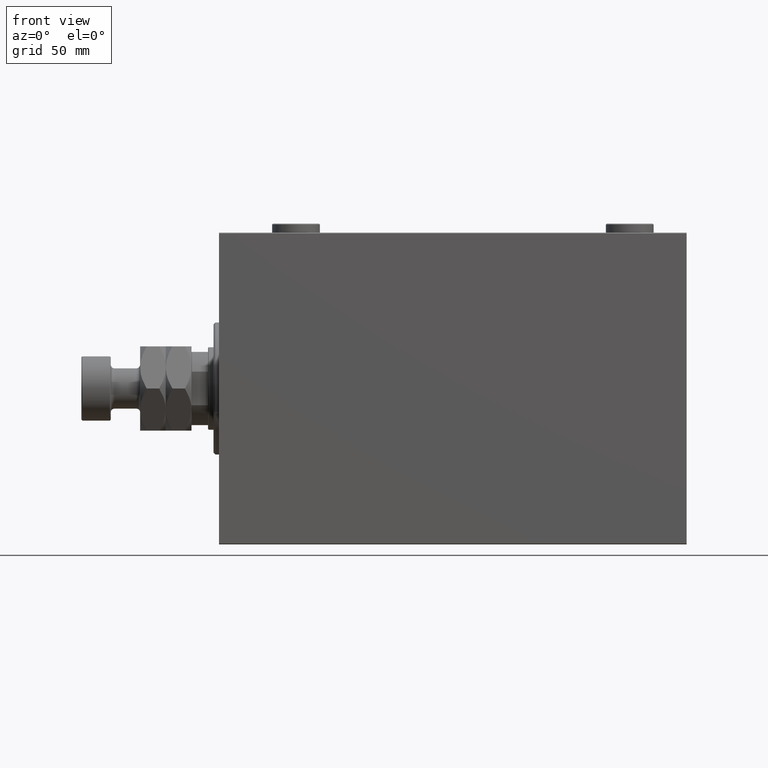
[diagram: clean part render]
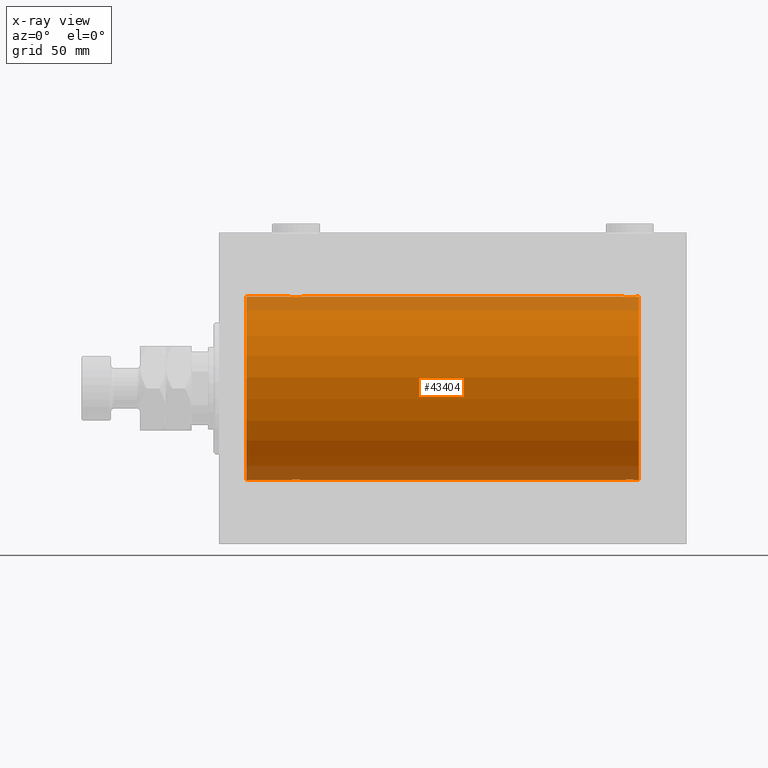
[diagram: x-ray — body ghosted, one internal face saturated and labeled with its STEP entity id]
A machine part, front view, then the same camera in x-ray: the body is ghosted and one INTERNAL B-rep face — a face not visible from any outside direction — is saturated and labeled: STEP entity #43404.
In plain terms, the highlighted cylindrical surface (partial cylindrical patch) has radius 50 mm, axis along (-1, -0, -0).
Its self-contained STEP definition (entity closure, byte-faithful):
#37 = DIRECTION ( 'NONE',  ( -1.000000000000000000, -0.000000000000000000, -0.000000000000000000 ) ) ;
#136 = CIRCLE ( 'NONE', #33577, 50.00000000000000000 ) ;
#207 = CARTESIAN_POINT ( 'NONE',  ( 45.81839248987871827, -1.886522330773408029, 49.96505190380065642 ) ) ;
#288 = CARTESIAN_POINT ( 'NONE',  ( 46.25000000000000000, 6.123233970928975205E-15, -50.00000000000000000 ) ) ;
#728 = CARTESIAN_POINT ( 'NONE',  ( 228.2224263552078014, -0.5587117664567154973, 49.99763378604802000 ) ) ;
#965 = CARTESIAN_POINT ( 'NONE',  ( 228.2500000000000568, -0.2808785465865648034, 50.00000000000001421 ) ) ;
#1129 = VERTEX_POINT ( 'NONE', #44619 ) ;
#1134 = ORIENTED_EDGE ( 'NONE', *, *, #41223, .T. ) ;
#1187 = CARTESIAN_POINT ( 'NONE',  ( 228.2500000000000284, 3.264240518254796977E-15, 50.00000000000000000 ) ) ;
#1582 = ORIENTED_EDGE ( 'NONE', *, *, #31809, .F. ) ;
#1721 = FACE_OUTER_BOUND ( 'NONE', #31371, .T. ) ;
#1850 = CARTESIAN_POINT ( 'NONE',  ( 43.88744739392799232, -3.818052230167705119, -49.85412671291930309 ) ) ;
#2080 = DIRECTION ( 'NONE',  ( -1.000000000000000000, -0.000000000000000000, -0.000000000000000000 ) ) ;
#2084 = CARTESIAN_POINT ( 'NONE',  ( 46.03272642097311973, -1.369753890039645539, -49.98188917176553048 ) ) ;
#2270 = CARTESIAN_POINT ( 'NONE',  ( 228.2231075279900381, -0.5531336717329015107, -49.99769193709643389 ) ) ;
#2323 = CARTESIAN_POINT ( 'NONE',  ( 42.55997867695646875, -4.222042462213109637, -49.82145436824654183 ) ) ;
#2507 = CARTESIAN_POINT ( 'NONE',  ( 219.8875029891967188, -1.108337267831510209, -49.98846998601261760 ) ) ;
#2745 = CARTESIAN_POINT ( 'NONE',  ( 223.4459143511985246, -4.222816005855223764, -49.82138837911247009 ) ) ;
#3031 = CARTESIAN_POINT ( 'NONE',  ( 42.28395287026697957, -4.249777379711388470, -49.81906655360197789 ) ) ;
#3273 = CARTESIAN_POINT ( 'NONE',  ( 37.77757364479219149, -0.5587117664567089470, -49.99763378604803421 ) ) ;
#3417 = CARTESIAN_POINT ( 'NONE',  ( 220.3106284432061841, -2.128188802142376268, 49.95522967821975158 ) ) ;
#3532 = CARTESIAN_POINT ( 'NONE',  ( 38.17899418014773261, -1.881229021238125521, 49.96525240872481533 ) ) ;
#4171 = DIRECTION ( 'NONE',  ( -1.000000000000000000, 0.000000000000000000, 0.000000000000000000 ) ) ;
#4184 = ORIENTED_EDGE ( 'NONE', *, *, #39753, .T. ) ;
#4294 = CARTESIAN_POINT ( 'NONE',  ( 228.0307979615534748, -1.375411031076039237, 49.98173289062309976 ) ) ;
#4523 = CARTESIAN_POINT ( 'NONE',  ( 225.0973761787904550, -4.115209769591112732, 49.83039196709102470 ) ) ;
#4755 = CARTESIAN_POINT ( 'NONE',  ( 226.8069783183931349, -3.203153387937324403, 49.89767833571684008 ) ) ;
#4779 = DIRECTION ( 'NONE',  ( 0.000000000000000000, 0.000000000000000000, 1.000000000000000000 ) ) ;
#4906 = VERTEX_POINT ( 'NONE', #37969 ) ;
#5084 = VERTEX_POINT ( 'NONE', #20350 ) ;
#5523 = CYLINDRICAL_SURFACE ( 'NONE', #9236, 50.00000000000000000 ) ;
#5894 = CARTESIAN_POINT ( 'NONE',  ( 38.80078072038718062, -2.811461347331096317, -49.92127983148851911 ) ) ;
#6081 = CARTESIAN_POINT ( 'NONE',  ( 222.9026238212096587, -4.115209769591121614, -49.83039196709102470 ) ) ;
#6132 = CARTESIAN_POINT ( 'NONE',  ( 37.75000000000002132, -0.2808785465865586417, -50.00000000000002842 ) ) ;
#6369 = CARTESIAN_POINT ( 'NONE',  ( 38.18160751012128173, -1.886522330773408251, -49.96505190380065642 ) ) ;
#6550 = CARTESIAN_POINT ( 'NONE',  ( 219.9692020384465820, -1.375411031076054336, -49.98173289062309976 ) ) ;
#6875 = CARTESIAN_POINT ( 'NONE',  ( 44.80697831839309941, -3.203153387937316854, 49.89767833571684719 ) ) ;
#6897 = VECTOR ( 'NONE', #39647, 1000.000000000000000 ) ;
#7059 = B_SPLINE_CURVE_WITH_KNOTS ( 'NONE', 3,
 ( #16145, #30654, #34695, #45188, #2084, #19262, #12574, #41621, #12804, #38039, #19953, #34463, #1850, #27310, #9954, #2323, #3031, #31835, #34934, #20887, #38739, #27783, #16849, #42321, #46606, #5894, #35651, #31599, #6369, #24216, #31365, #3273, #6132, #35414 ),
 .UNSPECIFIED., .F., .F.,
 ( 4, 2, 2, 2, 2, 2, 2, 2, 2, 2, 2, 2, 2, 2, 2, 2, 4 ),
 ( 0.01329343152928757175, 0.01412407817529635380, 0.01495472482130513585, 0.01578537146731391616, 0.01661601811332270168, 0.01744666475933148372, 0.01827731140534026577, 0.01910795805134904782, 0.01993860469735782986, 0.02076925134336661191, 0.02159989798937539396, 0.02243054463538417601, 0.02326119128139295805, 0.02409183792740174010, 0.02492248457341052215, 0.02575313121941930072, 0.02658377786542808624 ),
 .UNSPECIFIED. ) ;
#7111 = CARTESIAN_POINT ( 'NONE',  ( 37.88568086693991432, -1.101350136471744623, 49.98862054280447609 ) ) ;
#7346 = CARTESIAN_POINT ( 'NONE',  ( 37.75000000000000711, -2.480809774739037926E-23, 50.00000000000000000 ) ) ;
#7449 = CARTESIAN_POINT ( 'NONE',  ( 229.0000000000000000, 6.123233995736764507E-15, -50.00000000000000000 ) ) ;
#7521 = CARTESIAN_POINT ( 'NONE',  ( 229.0000000000000000, 0.000000000000000000, 0.000000000000000000 ) ) ;
#7751 = EDGE_CURVE ( 'NONE', #17693, #5084, #13279, .T. ) ;
#8235 = ORIENTED_EDGE ( 'NONE', *, *, #8852, .T. ) ;
#8346 = CARTESIAN_POINT ( 'NONE',  ( 221.8686360055384910, -3.687400765141532144, 49.86408552998298660 ) ) ;
#8420 = DIRECTION ( 'NONE',  ( -1.000000000000000000, -0.000000000000000000, -0.000000000000000000 ) ) ;
#8852 = EDGE_CURVE ( 'NONE', #15569, #45345, #23226, .T. ) ;
#9236 = AXIS2_PLACEMENT_3D ( 'NONE', #34101, #8420, #45289 ) ;
#9430 = CARTESIAN_POINT ( 'NONE',  ( 224.2839528702670293, -4.249777379711420444, -49.81906655360197789 ) ) ;
#9663 = CARTESIAN_POINT ( 'NONE',  ( 226.1313639944616227, -3.687400765141540582, -49.86408552998298660 ) ) ;
#9954 = CARTESIAN_POINT ( 'NONE',  ( 43.10323296034216156, -4.113647494206467137, -49.83052139214892406 ) ) ;
#10383 = CARTESIAN_POINT ( 'NONE',  ( 225.1032329603422397, -4.113647494206493782, -49.83052139214891696 ) ) ;
#10462 = CARTESIAN_POINT ( 'NONE',  ( 43.36710647554576070, -4.033756670430846292, 49.83713703490974467 ) ) ;
#10813 = CARTESIAN_POINT ( 'NONE',  ( 226.5882021467620291, -3.382416624899780899, 49.88570010427955737 ) ) ;
#11383 = EDGE_CURVE ( 'NONE', #43523, #21063, #7059, .T. ) ;
#12574 = CARTESIAN_POINT ( 'NONE',  ( 45.68937155679385853, -2.128188802142360281, -49.95522967821975868 ) ) ;
#12769 = ORIENTED_EDGE ( 'NONE', *, *, #25586, .F. ) ;
#12804 = CARTESIAN_POINT ( 'NONE',  ( 45.20303561951989479, -2.807099414226267076, -49.92152599098507437 ) ) ;
#13279 = LINE ( 'NONE', #28012, #40329 ) ;
#13395 = CIRCLE ( 'NONE', #14930, 50.00000000000000000 ) ;
#13468 = CARTESIAN_POINT ( 'NONE',  ( 228.0327264209731766, -1.369753890039647093, -49.98188917176553048 ) ) ;
#13708 = CARTESIAN_POINT ( 'NONE',  ( 225.8874473939280279, -3.818052230167738870, -49.85412671291929598 ) ) ;
#13787 = CARTESIAN_POINT ( 'NONE',  ( 46.03079796155342507, -1.375411031076031687, 49.98173289062309976 ) ) ;
#14022 = CARTESIAN_POINT ( 'NONE',  ( 39.86863600553846254, -3.687400765141531700, 49.86408552998297949 ) ) ;
#14254 = CARTESIAN_POINT ( 'NONE',  ( 38.62118282736263097, -2.593114840406128163, 49.93325460257639747 ) ) ;
#14346 = VERTEX_POINT ( 'NONE', #39781 ) ;
#14367 = CARTESIAN_POINT ( 'NONE',  ( 221.4068727911404721, -3.378657745070624774, 49.88595615988430154 ) ) ;
#14494 = CARTESIAN_POINT ( 'NONE',  ( 46.25000000000004263, -0.2808785465865667463, 50.00000000000001421 ) ) ;
#14606 = VERTEX_POINT ( 'NONE', #20684 ) ;
#14930 = AXIS2_PLACEMENT_3D ( 'NONE', #7521, #4171, #18703 ) ;
#15249 = CARTESIAN_POINT ( 'NONE',  ( 219.7768924720100472, -0.5531336717329072838, 49.99769193709643389 ) ) ;
#15569 = VERTEX_POINT ( 'NONE', #40200 ) ;
#15630 = DIRECTION ( 'NONE',  ( -1.000000000000000000, -0.000000000000000000, -0.000000000000000000 ) ) ;
#15777 = LINE ( 'NONE', #30284, #25109 ) ;
#16145 = CARTESIAN_POINT ( 'NONE',  ( 46.25000000000000000, 6.123233970928975205E-15, -50.00000000000000000 ) ) ;
#16849 = CARTESIAN_POINT ( 'NONE',  ( 39.87368355124922203, -3.690299572754709878, -49.86386974736159772 ) ) ;
#17032 = CARTESIAN_POINT ( 'NONE',  ( 221.4117978532380278, -3.382416624899790669, -49.88570010427955737 ) ) ;
#17036 = LINE ( 'NONE', #24409, #6897 ) ;
#17693 = VERTEX_POINT ( 'NONE', #43828 ) ;
#17939 = CARTESIAN_POINT ( 'NONE',  ( 223.7160471297330560, -4.249777379711409786, 49.81906655360197789 ) ) ;
#18059 = CARTESIAN_POINT ( 'NONE',  ( 44.58820214676201488, -3.382416624899780011, 49.88570010427956447 ) ) ;
#18303 = CARTESIAN_POINT ( 'NONE',  ( 39.18846933484580575, -3.199146701881673938, 49.89793607725460589 ) ) ;
#18703 = DIRECTION ( 'NONE',  ( 0.000000000000000000, 0.000000000000000000, 1.000000000000000000 ) ) ;
#18826 = CARTESIAN_POINT ( 'NONE',  ( 228.1124970108033949, -1.108337267831492889, 49.98846998601261760 ) ) ;
#18902 = VECTOR ( 'NONE', #37, 1000.000000000000000 ) ;
#19058 = CARTESIAN_POINT ( 'NONE',  ( 226.1263164487508277, -3.690299572754722313, 49.86386974736159061 ) ) ;
#19262 = CARTESIAN_POINT ( 'NONE',  ( 45.82100581985226029, -1.881229021238117305, -49.96525240872482954 ) ) ;
#19541 = ORIENTED_EDGE ( 'NONE', *, *, #26509, .T. ) ;
#19904 = ORIENTED_EDGE ( 'NONE', *, *, #41822, .F. ) ;
#19953 = CARTESIAN_POINT ( 'NONE',  ( 44.59312720885954917, -3.378657745070612339, -49.88595615988430154 ) ) ;
#20067 = B_SPLINE_CURVE_WITH_KNOTS ( 'NONE', 3,
 ( #26190, #44294, #15249, #37138, #29758, #37371, #3417, #25310, #29993, #36907, #14367, #8346, #21273, #39834, #46977, #44523, #17939, #28870, #22845, #4523, #40726, #43409, #19058, #10813, #4755, #26648, #22388, #33799, #33569, #4294, #18826, #728, #965, #1187 ),
 .UNSPECIFIED., .F., .F.,
 ( 4, 2, 2, 2, 2, 2, 2, 2, 2, 2, 2, 2, 2, 2, 2, 2, 4 ),
 ( 0.01329343152928759257, 0.01412407817529637809, 0.01495472482130516534, 0.01578537146731395086, 0.01661601811332273637, 0.01744666475933152189, 0.01827731140534030740, 0.01910795805134909292, 0.01993860469735788191, 0.02076925134336666742, 0.02159989798937545294, 0.02243054463538423846, 0.02326119128139302744, 0.02409183792740181296, 0.02492248457341059847, 0.02575313121941938399, 0.02658377786542816951 ),
 .UNSPECIFIED. ) ;
#20350 = CARTESIAN_POINT ( 'NONE',  ( 228.2500000000000284, 3.264240518254796977E-15, 50.00000000000000000 ) ) ;
#20603 = CARTESIAN_POINT ( 'NONE',  ( 223.7227507296208842, -4.250219976861660420, -49.81902879621013369 ) ) ;
#20684 = CARTESIAN_POINT ( 'NONE',  ( 46.25000000000000000, 5.983909456282587589E-15, 50.00000000000000000 ) ) ;
#20887 = CARTESIAN_POINT ( 'NONE',  ( 40.90262382120963025, -4.115209769591096745, -49.83039196709104601 ) ) ;
#21063 = VERTEX_POINT ( 'NONE', #43854 ) ;
#21078 = CARTESIAN_POINT ( 'NONE',  ( 227.2030356195199658, -2.807099414226281286, -49.92152599098506727 ) ) ;
#21159 = CARTESIAN_POINT ( 'NONE',  ( 44.12631644875079928, -3.690299572754719204, 49.86386974736159772 ) ) ;
#21273 = CARTESIAN_POINT ( 'NONE',  ( 222.1125526060720290, -3.818052230167728656, 49.85412671291929598 ) ) ;
#21321 = CARTESIAN_POINT ( 'NONE',  ( 224.5599786769565469, -4.222042462213138947, -49.82145436824653473 ) ) ;
#21396 = CARTESIAN_POINT ( 'NONE',  ( 45.68602832121950286, -2.133925816755175564, 49.95498245321557818 ) ) ;
#21699 = LINE ( 'NONE', #32644, #18902 ) ;
#21864 = CARTESIAN_POINT ( 'NONE',  ( 40.89676703965783844, -4.113647494206482236, 49.83052139214890985 ) ) ;
#21944 = CARTESIAN_POINT ( 'NONE',  ( 14.99999999999998579, 0.000000000000000000, 0.000000000000000000 ) ) ;
#22388 = CARTESIAN_POINT ( 'NONE',  ( 227.3751998408197039, -2.597781786597468390, 49.93300953359122474 ) ) ;
#22506 = CARTESIAN_POINT ( 'NONE',  ( 219.7500000000000284, -2.480257572105383217E-23, 50.00000000000000000 ) ) ;
#22845 = CARTESIAN_POINT ( 'NONE',  ( 224.5540856488015322, -4.222816005855213106, 49.82138837911247009 ) ) ;
#23226 = LINE ( 'NONE', #26335, #27414 ) ;
#24021 = CARTESIAN_POINT ( 'NONE',  ( 228.2500000000000284, 6.123233970934497231E-15, -50.00000000000000000 ) ) ;
#24165 = CARTESIAN_POINT ( 'NONE',  ( 220.1816075101212959, -1.886522330773430900, -49.96505190380066352 ) ) ;
#24216 = CARTESIAN_POINT ( 'NONE',  ( 37.96920203844657493, -1.375411031076035240, -49.98173289062309976 ) ) ;
#24409 = CARTESIAN_POINT ( 'NONE',  ( 229.0000000000000000, 0.000000000000000000, 50.00000000000000000 ) ) ;
#24485 = CARTESIAN_POINT ( 'NONE',  ( 37.75000000000001421, -0.2773743941468539420, 50.00000000000000711 ) ) ;
#24881 = CARTESIAN_POINT ( 'NONE',  ( 219.7775736447922270, -0.5587117664567331499, -49.99763378604802000 ) ) ;
#24962 = CARTESIAN_POINT ( 'NONE',  ( 43.88217049484444487, -3.820681512513376177, 49.85392475515401145 ) ) ;
#25109 = VECTOR ( 'NONE', #44817, 1000.000000000000000 ) ;
#25195 = CARTESIAN_POINT ( 'NONE',  ( 37.77689247200999034, -0.5531336717329059516, 49.99769193709643389 ) ) ;
#25310 = CARTESIAN_POINT ( 'NONE',  ( 220.6211828273627304, -2.593114840406140598, 49.93325460257641879 ) ) ;
#25586 = EDGE_CURVE ( 'NONE', #15569, #17693, #13395, .T. ) ;
#26190 = CARTESIAN_POINT ( 'NONE',  ( 219.7500000000000284, -2.480257572105383217E-23, 50.00000000000000000 ) ) ;
#26335 = CARTESIAN_POINT ( 'NONE',  ( 229.0000000000000000, 6.123233995736764507E-15, -50.00000000000000000 ) ) ;
#26509 = EDGE_CURVE ( 'NONE', #1129, #14606, #45102, .T. ) ;
#26648 = CARTESIAN_POINT ( 'NONE',  ( 227.1992192796128336, -2.811461347331109639, 49.92127983148852621 ) ) ;
#27090 = DIRECTION ( 'NONE',  ( -1.000000000000000000, -0.000000000000000000, -0.000000000000000000 ) ) ;
#27310 = CARTESIAN_POINT ( 'NONE',  ( 43.37333436579038448, -4.031616700143170640, -49.83731072121799599 ) ) ;
#27414 = VECTOR ( 'NONE', #15630, 1000.000000000000000 ) ;
#27730 = CARTESIAN_POINT ( 'NONE',  ( 227.6893715567939580, -2.128188802142363389, -49.95522967821975158 ) ) ;
#27783 = CARTESIAN_POINT ( 'NONE',  ( 40.11782950515556934, -3.820681512513369515, -49.85392475515401145 ) ) ;
#27965 = CARTESIAN_POINT ( 'NONE',  ( 220.8007807203871948, -2.811461347331121186, -49.92127983148852621 ) ) ;
#28012 = CARTESIAN_POINT ( 'NONE',  ( 229.0000000000000000, 0.000000000000000000, 50.00000000000000000 ) ) ;
#28215 = CARTESIAN_POINT ( 'NONE',  ( 220.6248001591803813, -2.597781786597481712, -49.93300953359122474 ) ) ;
#28451 = CARTESIAN_POINT ( 'NONE',  ( 228.1143191330600359, -1.101350136471741070, -49.98862054280448319 ) ) ;
#28522 = CARTESIAN_POINT ( 'NONE',  ( 38.79696438048010521, -2.807099414226279066, 49.92152599098506016 ) ) ;
#28870 = CARTESIAN_POINT ( 'NONE',  ( 224.2772492703792011, -4.250219976861650650, 49.81902879621013369 ) ) ;
#29000 = CARTESIAN_POINT ( 'NONE',  ( 46.25000000000000000, 5.983909456282587589E-15, 50.00000000000000000 ) ) ;
#29315 = DIRECTION ( 'NONE',  ( -1.000000000000000000, 0.000000000000000000, 0.000000000000000000 ) ) ;
#29457 = ORIENTED_EDGE ( 'NONE', *, *, #37241, .T. ) ;
#29571 = VERTEX_POINT ( 'NONE', #34523 ) ;
#29758 = CARTESIAN_POINT ( 'NONE',  ( 219.9672735790269087, -1.369753890039667299, 49.98188917176553048 ) ) ;
#29993 = CARTESIAN_POINT ( 'NONE',  ( 220.7969643804801194, -2.807099414226295941, 49.92152599098506727 ) ) ;
#30284 = CARTESIAN_POINT ( 'NONE',  ( 229.0000000000000000, 6.123233995736764507E-15, -50.00000000000000000 ) ) ;
#30654 = CARTESIAN_POINT ( 'NONE',  ( 46.25000000000000000, -0.2773743941468470031, -50.00000000000000000 ) ) ;
#30996 = EDGE_CURVE ( 'NONE', #45345, #29571, #35186, .T. ) ;
#31365 = CARTESIAN_POINT ( 'NONE',  ( 37.88750298919665482, -1.108337267831484008, -49.98846998601261760 ) ) ;
#31371 = EDGE_LOOP ( 'NONE', ( #12769, #8235, #37766, #1134, #33193, #29457, #4184, #19904, #19541, #1582, #44455, #39908 ) ) ;
#31548 = CARTESIAN_POINT ( 'NONE',  ( 219.7500000000000284, -1.485882679034568268E-14, -50.00000000000000000 ) ) ;
#31599 = CARTESIAN_POINT ( 'NONE',  ( 38.31397167878050425, -2.133925816755180449, -49.95498245321556396 ) ) ;
#31787 = CARTESIAN_POINT ( 'NONE',  ( 228.2500000000000284, 6.123233970934497231E-15, -50.00000000000000000 ) ) ;
#31809 = EDGE_CURVE ( 'NONE', #38046, #14606, #21699, .T. ) ;
#31835 = CARTESIAN_POINT ( 'NONE',  ( 41.72275072962083442, -4.250219976861629334, -49.81902879621016211 ) ) ;
#31866 = CARTESIAN_POINT ( 'NONE',  ( 41.71604712973303464, -4.249777379711404457, 49.81906655360197078 ) ) ;
#32030 = CARTESIAN_POINT ( 'NONE',  ( 221.1930216816069219, -3.203153387937335506, -49.89767833571684008 ) ) ;
#32104 = CARTESIAN_POINT ( 'NONE',  ( 37.96727357902688027, -1.369753890039652644, 49.98188917176551627 ) ) ;
#32575 = CARTESIAN_POINT ( 'NONE',  ( 45.37519984081967550, -2.597781786597460840, 49.93300953359122474 ) ) ;
#32644 = CARTESIAN_POINT ( 'NONE',  ( 229.0000000000000000, 0.000000000000000000, 50.00000000000000000 ) ) ;
#32817 = CARTESIAN_POINT ( 'NONE',  ( 40.62666563420964394, -4.031616700143186627, 49.83731072121798888 ) ) ;
#33193 = ORIENTED_EDGE ( 'NONE', *, *, #11383, .T. ) ;
#33569 = CARTESIAN_POINT ( 'NONE',  ( 227.8183924898787609, -1.886522330773414913, 49.96505190380066352 ) ) ;
#33577 = AXIS2_PLACEMENT_3D ( 'NONE', #21944, #29315, #4779 ) ;
#33799 = CARTESIAN_POINT ( 'NONE',  ( 227.6860283212195668, -2.133925816755183558, 49.95498245321557818 ) ) ;
#34101 = CARTESIAN_POINT ( 'NONE',  ( 229.0000000000000000, 0.000000000000000000, 0.000000000000000000 ) ) ;
#34463 = CARTESIAN_POINT ( 'NONE',  ( 44.13136399446155878, -3.687400765141517045, -49.86408552998298660 ) ) ;
#34523 = CARTESIAN_POINT ( 'NONE',  ( 219.7500000000000284, -1.485882679034568268E-14, -50.00000000000000000 ) ) ;
#34695 = CARTESIAN_POINT ( 'NONE',  ( 46.22310752799000255, -0.5531336717328990682, -49.99769193709643389 ) ) ;
#34883 = CARTESIAN_POINT ( 'NONE',  ( 222.1178295051556688, -3.820681512513397937, -49.85392475515401145 ) ) ;
#34934 = CARTESIAN_POINT ( 'NONE',  ( 41.44591435119853173, -4.222816005855193566, -49.82138837911247720 ) ) ;
#34986 = VECTOR ( 'NONE', #27090, 1000.000000000000000 ) ;
#35128 = CARTESIAN_POINT ( 'NONE',  ( 226.5931272088596415, -3.378657745070633656, -49.88595615988430154 ) ) ;
#35186 = B_SPLINE_CURVE_WITH_KNOTS ( 'NONE', 3,
 ( #31787, #42982, #2270, #28451, #13468, #42747, #27730, #46075, #21078, #46316, #35128, #9663, #13708, #38687, #10383, #21321, #9430, #20603, #2745, #6081, #42040, #34883, #35840, #17032, #32030, #27965, #28215, #42268, #24165, #6550, #2507, #24881, #35601, #31548 ),
 .UNSPECIFIED., .F., .F.,
 ( 4, 2, 2, 2, 2, 2, 2, 2, 2, 2, 2, 2, 2, 2, 2, 2, 4 ),
 ( 0.01329343152928758563, 0.01412407817529637115, 0.01495472482130515840, 0.01578537146731394392, 0.01661601811332272943, 0.01744666475933151495, 0.01827731140534030393, 0.01910795805134908945, 0.01993860469735787497, 0.02076925134336666395, 0.02159989798937544947, 0.02243054463538423499, 0.02326119128139302050, 0.02409183792740180602, 0.02492248457341059154, 0.02575313121941938052, 0.02658377786542816604 ),
 .UNSPECIFIED. ) ;
#35283 = EDGE_CURVE ( 'NONE', #38046, #5084, #20067, .T. ) ;
#35414 = CARTESIAN_POINT ( 'NONE',  ( 37.75000000000000711, 4.113764933535406279E-15, -50.00000000000000000 ) ) ;
#35601 = CARTESIAN_POINT ( 'NONE',  ( 219.7500000000000853, -0.2808785465865831776, -50.00000000000001421 ) ) ;
#35651 = CARTESIAN_POINT ( 'NONE',  ( 38.62480015918034582, -2.597781786597462617, -49.93300953359122474 ) ) ;
#35840 = CARTESIAN_POINT ( 'NONE',  ( 221.8736835512492576, -3.690299572754732083, -49.86386974736159061 ) ) ;
#35916 = CARTESIAN_POINT ( 'NONE',  ( 46.11249701080335228, -1.108337267831485340, 49.98846998601261760 ) ) ;
#36146 = CARTESIAN_POINT ( 'NONE',  ( 42.27724927037917979, -4.250219976861642657, 49.81902879621012659 ) ) ;
#36381 = CARTESIAN_POINT ( 'NONE',  ( 45.19921927961282648, -2.811461347331102534, 49.92127983148852621 ) ) ;
#36907 = CARTESIAN_POINT ( 'NONE',  ( 221.1884693348459052, -3.199146701881689481, 49.89793607725460589 ) ) ;
#37138 = CARTESIAN_POINT ( 'NONE',  ( 219.8856808669399356, -1.101350136471746399, 49.98862054280448319 ) ) ;
#37241 = EDGE_CURVE ( 'NONE', #21063, #14346, #15777, .T. ) ;
#37371 = CARTESIAN_POINT ( 'NONE',  ( 220.1789941801477539, -1.881229021238139731, 49.96525240872482954 ) ) ;
#37766 = ORIENTED_EDGE ( 'NONE', *, *, #30996, .T. ) ;
#37969 = CARTESIAN_POINT ( 'NONE',  ( 14.99999999999998579, 0.000000000000000000, 50.00000000000000000 ) ) ;
#38039 = CARTESIAN_POINT ( 'NONE',  ( 44.81153066515420136, -3.199146701881660171, -49.89793607725461300 ) ) ;
#38046 = VERTEX_POINT ( 'NONE', #22506 ) ;
#38687 = CARTESIAN_POINT ( 'NONE',  ( 225.3733343657904129, -4.031616700143205279, -49.83731072121799599 ) ) ;
#38739 = CARTESIAN_POINT ( 'NONE',  ( 40.63289352445425351, -4.033756670430834745, -49.83713703490974467 ) ) ;
#39010 = CARTESIAN_POINT ( 'NONE',  ( 41.44002132304353125, -4.222042462213122960, 49.82145436824652762 ) ) ;
#39245 = CARTESIAN_POINT ( 'NONE',  ( 38.31062844320613436, -2.128188802142365166, 49.95522967821974447 ) ) ;
#39484 = CARTESIAN_POINT ( 'NONE',  ( 43.09737617879036975, -4.115209769591108291, 49.83039196709102470 ) ) ;
#39647 = DIRECTION ( 'NONE',  ( -1.000000000000000000, -0.000000000000000000, -0.000000000000000000 ) ) ;
#39718 = CARTESIAN_POINT ( 'NONE',  ( 40.11255260607201478, -3.818052230167719330, 49.85412671291930309 ) ) ;
#39753 = EDGE_CURVE ( 'NONE', #14346, #4906, #136, .T. ) ;
#39781 = CARTESIAN_POINT ( 'NONE',  ( 14.99999999999998579, 6.123233995736764507E-15, -50.00000000000000000 ) ) ;
#39834 = CARTESIAN_POINT ( 'NONE',  ( 222.6266656342096724, -4.031616700143195509, 49.83731072121799599 ) ) ;
#39908 = ORIENTED_EDGE ( 'NONE', *, *, #7751, .F. ) ;
#40057 = LINE ( 'NONE', #7449, #34986 ) ;
#40200 = CARTESIAN_POINT ( 'NONE',  ( 229.0000000000000000, 6.123233995736764507E-15, -50.00000000000000000 ) ) ;
#40329 = VECTOR ( 'NONE', #2080, 1000.000000000000000 ) ;
#40726 = CARTESIAN_POINT ( 'NONE',  ( 225.3671064755457678, -4.033756670430855173, 49.83713703490974467 ) ) ;
#41223 = EDGE_CURVE ( 'NONE', #29571, #43523, #40057, .T. ) ;
#41621 = CARTESIAN_POINT ( 'NONE',  ( 45.37881717263737613, -2.593114840406121946, -49.93325460257640458 ) ) ;
#41822 = EDGE_CURVE ( 'NONE', #1129, #4906, #17036, .T. ) ;
#42040 = CARTESIAN_POINT ( 'NONE',  ( 222.6328935244542890, -4.033756670430864943, -49.83713703490974467 ) ) ;
#42268 = CARTESIAN_POINT ( 'NONE',  ( 220.3139716787804332, -2.133925816755195992, -49.95498245321557818 ) ) ;
#42321 = CARTESIAN_POINT ( 'NONE',  ( 39.41179785323801354, -3.382416624899770685, -49.88570010427955737 ) ) ;
#42747 = CARTESIAN_POINT ( 'NONE',  ( 227.8210058198523598, -1.881229021238121524, -49.96525240872482954 ) ) ;
#42982 = CARTESIAN_POINT ( 'NONE',  ( 228.2500000000000568, -0.2773743941468490570, -50.00000000000000711 ) ) ;
#43059 = CARTESIAN_POINT ( 'NONE',  ( 42.55408564880149669, -4.222816005855208665, 49.82138837911247009 ) ) ;
#43295 = CARTESIAN_POINT ( 'NONE',  ( 39.40687279114044372, -3.378657745070624774, 49.88595615988428733 ) ) ;
#43404 = ADVANCED_FACE ( 'NONE', ( #1721 ), #5523, .F. ) ;
#43409 = CARTESIAN_POINT ( 'NONE',  ( 225.8821704948444733, -3.820681512513388167, 49.85392475515401145 ) ) ;
#43523 = VERTEX_POINT ( 'NONE', #288 ) ;
#43828 = CARTESIAN_POINT ( 'NONE',  ( 229.0000000000000000, 0.000000000000000000, 50.00000000000000000 ) ) ;
#43854 = CARTESIAN_POINT ( 'NONE',  ( 37.75000000000000711, 4.113764933535406279E-15, -50.00000000000000000 ) ) ;
#44294 = CARTESIAN_POINT ( 'NONE',  ( 219.7500000000000284, -0.2773743941468554408, 50.00000000000000711 ) ) ;
#44455 = ORIENTED_EDGE ( 'NONE', *, *, #35283, .T. ) ;
#44523 = CARTESIAN_POINT ( 'NONE',  ( 223.4400213230435668, -4.222042462213131842, 49.82145436824653473 ) ) ;
#44619 = CARTESIAN_POINT ( 'NONE',  ( 37.75000000000000711, -2.480809774739037926E-23, 50.00000000000000000 ) ) ;
#44817 = DIRECTION ( 'NONE',  ( -1.000000000000000000, -0.000000000000000000, -0.000000000000000000 ) ) ;
#45102 = B_SPLINE_CURVE_WITH_KNOTS ( 'NONE', 3,
 ( #7346, #24485, #25195, #7111, #32104, #3532, #39245, #14254, #28522, #18303, #43295, #14022, #39718, #32817, #21864, #39010, #31866, #36146, #43059, #39484, #10462, #24962, #21159, #18059, #6875, #36381, #32575, #21396, #207, #13787, #35916, #47102, #14494, #29000 ),
 .UNSPECIFIED., .F., .F.,
 ( 4, 2, 2, 2, 2, 2, 2, 2, 2, 2, 2, 2, 2, 2, 2, 2, 4 ),
 ( 0.01329343152928760124, 0.01412407817529638850, 0.01495472482130517575, 0.01578537146731396126, 0.01661601811332274678, 0.01744666475933153577, 0.01827731140534032128, 0.01910795805134911027, 0.01993860469735789925, 0.02076925134336668477, 0.02159989798937547029, 0.02243054463538425927, 0.02326119128139304479, 0.02409183792740183377, 0.02492248457341061929, 0.02575313121941940481, 0.02658377786542819379 ),
 .UNSPECIFIED. ) ;
#45188 = CARTESIAN_POINT ( 'NONE',  ( 46.11431913306007857, -1.101350136471737073, -49.98862054280448319 ) ) ;
#45289 = DIRECTION ( 'NONE',  ( 0.000000000000000000, 0.000000000000000000, 1.000000000000000000 ) ) ;
#45345 = VERTEX_POINT ( 'NONE', #24021 ) ;
#46075 = CARTESIAN_POINT ( 'NONE',  ( 227.3788171726373264, -2.593114840406127719, -49.93325460257641879 ) ) ;
#46316 = CARTESIAN_POINT ( 'NONE',  ( 226.8115306651542085, -3.199146701881677490, -49.89793607725460589 ) ) ;
#46606 = CARTESIAN_POINT ( 'NONE',  ( 39.19302168160691480, -3.203153387937309748, -49.89767833571684008 ) ) ;
#46977 = CARTESIAN_POINT ( 'NONE',  ( 222.8967670396579024, -4.113647494206492006, 49.83052139214891696 ) ) ;
#47102 = CARTESIAN_POINT ( 'NONE',  ( 46.22242635520780851, -0.5587117664567096131, 49.99763378604802000 ) ) ;